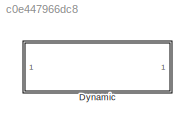
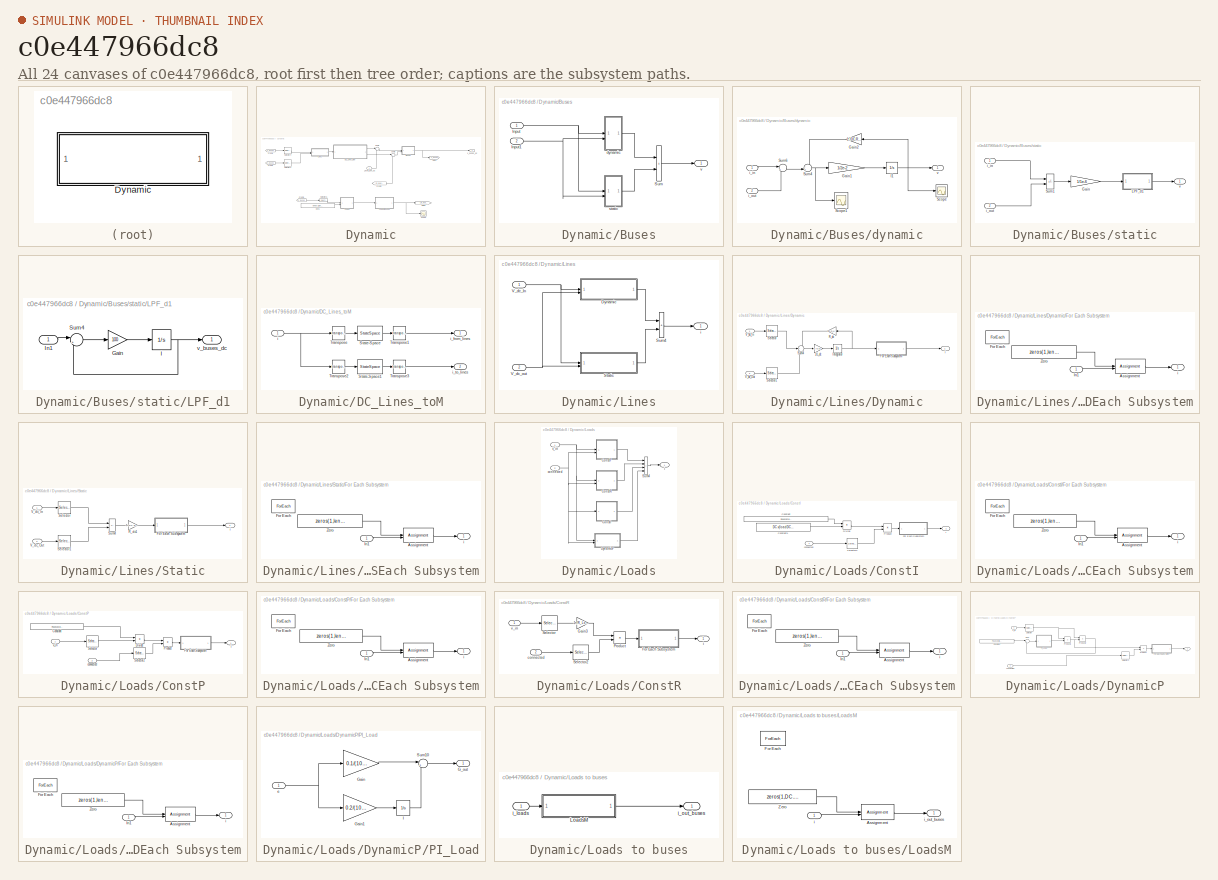
[diagram: thumbnail index - all 24 canvases of the model, root first then tree order]
MODEL slx_c0e447966dc8
KIND model
CONFIG AbsTol = auto
CONFIG EnableMultiTasking = off
CONFIG FixedStep = auto
CONFIG MaxStep = auto
CONFIG MinStep = auto
CONFIG RelTol = 1e-3
CONFIG SampleTimeConstraint = Unconstrained
CONFIG SolverName = VariableStepAuto
CONFIG StartTime = 0.0
CONFIG StopTime = 10.0
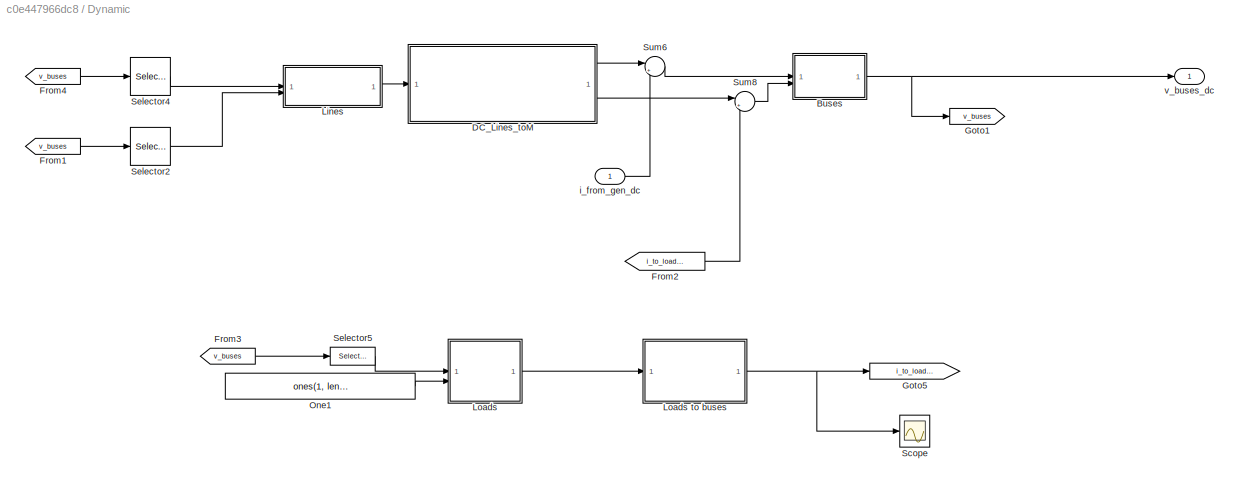
BLOCK [SubSystem] Dynamic
  VariantControl = Dynamic
BLOCK [SubSystem] Dynamic/Buses
BLOCK [Inport] Dynamic/Buses/Input
BLOCK [Inport] Dynamic/Buses/Input1
  Port = 2
BLOCK [Sum] Dynamic/Buses/Sum
  IconShape = rectangular
BLOCK [SubSystem] Dynamic/Buses/dynamic
  Commented = on
BLOCK [Gain] Dynamic/Buses/dynamic/Gain1
  Gain = 1/2e-2
BLOCK [Gain] Dynamic/Buses/dynamic/Gain2
  Gain = 1./DC.Rbus(busDC_complexity == 1)';
  NameLocation = top
BLOCK [Integrator] Dynamic/Buses/dynamic/I1
  InitialCondition = DC.v(busDC_complexity == 1)
BLOCK [Scope] Dynamic/Buses/dynamic/Scope
  ActiveDisplayYMaximum = 1.1
  ActiveDisplayYMinimum = 0.9
  DataLoggingVariableName = ScopeData1
  Floating = off
  GraphicalSettings = {"AxesScalingProperties":{"AlignXAxis":"Center","AlignYAxis":"Center","AutoScaleXAxisLimits":false,"AxesScaling":"Manual","AxesScalingNumUpdates":10,"ExpandOnly":true,"ScaleAxesLimitsAtStop":false,"XAxisDataRange":100,"YAxisDataRange":80},"DisplayProperties":{"ColorOrder":["auto","auto","auto","auto","auto","auto","auto","auto","auto","auto","auto","auto","auto","auto","auto","auto","auto","auto",...<+1971ch>
  LayoutDimensionsString = [1 1]
  MultipleDisplayCache = [{"MaxYLimMag":1.1,"MaxYLimReal":1.1,"MinYLimMag":0.9,"MinYLimReal":0.9,"PlotAsMagnitudePhase":false,"ShowGrid":true,"ShowLegend":false,"Title":"%<SignalLabel>","YLabel":""}]
  NumInputPorts = 1
  ScopeFrameLocation = window
  WasSavedAsWebScope = on
  WindowPosition = [1269.000000,437.000000,560.000000,411.000000,]
BLOCK [Scope] Dynamic/Buses/dynamic/Scope1
  ActiveDisplayYMaximum = 0.27003394850354928
  ActiveDisplayYMinimum = -0.35489510103335586
  ContainerLayout = {"WindowBounds":[482,126,1067,750]}
  DataLoggingVariableName = ScopeData5
  Floating = off
  GraphicalSettings = {"Style":{"BackgroundColor":[0.12941176470588237,0.12941176470588237,0.12941176470588237],"AxesColor":[0.06666666666666667,0.06666666666666667,0.06666666666666667],"LabelsColor":[0.8509803921568627,0.8509803921568627,0.8509803921568627],"PreserveColors":false,"Visible":[true,true,true,true],"LineStyle":["-","-","-","-"],"LineWidth":[1.5,1.5,1.5,1.5],"BarWidth":[0.9,0.9,0.9,0.9],"LineColor":["auto"...<+2342ch>
  MultipleDisplayCache = [{"MaxYLimMag":0.35489510103335586,"MaxYLimReal":0.27003394850354928,"MinYLimMag":0,"MinYLimReal":-0.35489510103335586,"PlotAsMagnitudePhase":false,"ShowGrid":true,"ShowLegend":false,"Title":"%<SignalLabel>","YLabel":""}]
  NumInputPorts = 2
  ScopeFrameLocation = container
  WasSavedAsWebScope = on
  WindowPosition = [482.000000,204.000000,1067.000000,750.000000,]
BLOCK [Sum] Dynamic/Buses/dynamic/Sum4
  Inputs = -+|
BLOCK [Sum] Dynamic/Buses/dynamic/Sum6
  Inputs = |+-
BLOCK [Inport] Dynamic/Buses/dynamic/i_in
BLOCK [Inport] Dynamic/Buses/dynamic/i_out
  Port = 2
BLOCK [Outport] Dynamic/Buses/dynamic/v
BLOCK [SubSystem] Dynamic/Buses/static
  Commented = on
BLOCK [Gain] Dynamic/Buses/static/Gain
  Gain = 1/1e-6
BLOCK [SubSystem] Dynamic/Buses/static/LPF_d1
BLOCK [Gain] Dynamic/Buses/static/LPF_d1/Gain
  Gain = 100
BLOCK [Integrator] Dynamic/Buses/static/LPF_d1/I
  InitialCondition = DC.v(busDC_complexity == 2)
BLOCK [Inport] Dynamic/Buses/static/LPF_d1/In1
BLOCK [Sum] Dynamic/Buses/static/LPF_d1/Sum4
  Inputs = |+-
BLOCK [Outport] Dynamic/Buses/static/LPF_d1/v_buses_dc
BLOCK [Sum] Dynamic/Buses/static/Sum1
  IconShape = rectangular
  Inputs = +-
BLOCK [Inport] Dynamic/Buses/static/i_in
BLOCK [Inport] Dynamic/Buses/static/i_out
  Port = 2
BLOCK [Outport] Dynamic/Buses/static/v
BLOCK [Outport] Dynamic/Buses/v
BLOCK [SubSystem] Dynamic/DC_Lines_toM
  TreatAsAtomicUnit = on
BLOCK [StateSpace] Dynamic/DC_Lines_toM/State-Space
  A = []
  B = []
  C = []
  D = DC.Lines_toM
  InitialCondition = 0
  ParameterTunability = Optimized
BLOCK [StateSpace] Dynamic/DC_Lines_toM/State-Space1
  A = []
  B = []
  C = []
  D = DC.Lines_fromM
  InitialCondition = 0
  ParameterTunability = Optimized
BLOCK [Math] Dynamic/DC_Lines_toM/Transpose
  Operator = transpose
BLOCK [Math] Dynamic/DC_Lines_toM/Transpose1
  Operator = transpose
BLOCK [Math] Dynamic/DC_Lines_toM/Transpose2
  Operator = transpose
BLOCK [Math] Dynamic/DC_Lines_toM/Transpose3
  Operator = transpose
BLOCK [Inport] Dynamic/DC_Lines_toM/i
BLOCK [Outport] Dynamic/DC_Lines_toM/i_from_lines
BLOCK [Outport] Dynamic/DC_Lines_toM/i_to_lines
  Port = 2
BLOCK [From] Dynamic/From1
  GotoTag = v_buses
BLOCK [From] Dynamic/From2
  GotoTag = i_to_loadsDC
BLOCK [From] Dynamic/From3
  GotoTag = v_buses
BLOCK [From] Dynamic/From4
  GotoTag = v_buses
BLOCK [Goto] Dynamic/Goto1
  GotoTag = v_buses
BLOCK [Goto] Dynamic/Goto5
  GotoTag = i_to_loadsDC
BLOCK [SubSystem] Dynamic/Lines
BLOCK [SubSystem] Dynamic/Lines/Dynamic
  Commented = on
BLOCK [Gain] Dynamic/Lines/Dynamic/1//L_dc
  Gain = 1./0.01
BLOCK [SubSystem] Dynamic/Lines/Dynamic/For Each Subsystem
  TreatAsAtomicUnit = on
BLOCK [Assignment] Dynamic/Lines/Dynamic/For Each Subsystem/Assignment
  DiagnosticForDimensions = Warning
  IndexOptions = Index vector (dialog)
  Indices = find(lineDC_complexity == 1)
  OutputSizes = 1
BLOCK [ForEach] Dynamic/Lines/Dynamic/For Each Subsystem/For Each
  DisableCoverage = on
BLOCK [Inport] Dynamic/Lines/Dynamic/For Each Subsystem/In1
  Partition = on
  PartitionDimension = 1
  PartitionOffset = 0
  PartitionWidth = 1
BLOCK [Constant] Dynamic/Lines/Dynamic/For Each Subsystem/Zero
  OutDataTypeStr = Inherit: Inherit via back propagation
  Value = zeros(1,length(DC.from))
  VectorParams1D = off
BLOCK [Outport] Dynamic/Lines/Dynamic/For Each Subsystem/i
  ConcatenationDimension = 1
BLOCK [Integrator] Dynamic/Lines/Dynamic/Integrator
  InitialCondition = DC.i_branch(lineDC_complexity == 1)
BLOCK [Gain] Dynamic/Lines/Dynamic/R_dc
  Gain = DC.R_Lines(lineDC_complexity == 1)
  NameLocation = top
BLOCK [Selector] Dynamic/Lines/Dynamic/Selector
  IndexOptions = Index vector (dialog),Index vector (dialog)
  Indices = 1,find(lineDC_complexity == 1)
  InputPortWidth = 3
  NumberOfDimensions = 2
  OutputSizes = 1,1
BLOCK [Selector] Dynamic/Lines/Dynamic/Selector1
  IndexOptions = Index vector (dialog),Index vector (dialog)
  Indices = 1,find(lineDC_complexity == 1)
  InputPortWidth = 3
  NumberOfDimensions = 2
  OutputSizes = 1,1
BLOCK [Sum] Dynamic/Lines/Dynamic/Sum4
  Inputs = -+-
BLOCK [Inport] Dynamic/Lines/Dynamic/V_dc_In
BLOCK [Inport] Dynamic/Lines/Dynamic/V_dc_Out
  Port = 2
BLOCK [Outport] Dynamic/Lines/Dynamic/i
BLOCK [SubSystem] Dynamic/Lines/Static
  Commented = on
BLOCK [SubSystem] Dynamic/Lines/Static/For Each Subsystem
  TreatAsAtomicUnit = on
BLOCK [Assignment] Dynamic/Lines/Static/For Each Subsystem/Assignment
  DiagnosticForDimensions = Warning
  IndexOptions = Index vector (dialog)
  Indices = find(lineDC_complexity == 2)
  OutputSizes = 1
BLOCK [ForEach] Dynamic/Lines/Static/For Each Subsystem/For Each
  DisableCoverage = on
BLOCK [Inport] Dynamic/Lines/Static/For Each Subsystem/In1
  Partition = on
  PartitionDimension = 1
  PartitionOffset = 0
  PartitionWidth = 1
BLOCK [Constant] Dynamic/Lines/Static/For Each Subsystem/Zero
  OutDataTypeStr = Inherit: Inherit via back propagation
  Value = zeros(1,length(DC.from))
  VectorParams1D = off
BLOCK [Outport] Dynamic/Lines/Static/For Each Subsystem/i
  ConcatenationDimension = 1
BLOCK [Gain] Dynamic/Lines/Static/R_dc1
  Gain = 1./DC.R_Lines(lineDC_complexity == 2)
BLOCK [Selector] Dynamic/Lines/Static/Selector
  IndexOptions = Index vector (dialog),Index vector (dialog)
  Indices = 1,find(lineDC_complexity == 2)
  InputPortWidth = 3
  NumberOfDimensions = 2
  OutputSizes = 1,1
BLOCK [Selector] Dynamic/Lines/Static/Selector1
  IndexOptions = Index vector (dialog),Index vector (dialog)
  Indices = 1,find(lineDC_complexity == 2)
  InputPortWidth = 3
  NumberOfDimensions = 2
  OutputSizes = 1,1
BLOCK [Sum] Dynamic/Lines/Static/Sum4
  IconShape = rectangular
  Inputs = +-
BLOCK [Inport] Dynamic/Lines/Static/V_dc_In
BLOCK [Inport] Dynamic/Lines/Static/V_dc_Out
  Port = 2
BLOCK [Outport] Dynamic/Lines/Static/i
BLOCK [Sum] Dynamic/Lines/Sum4
  IconShape = rectangular
BLOCK [Inport] Dynamic/Lines/V_dc_In
BLOCK [Inport] Dynamic/Lines/V_dc_out
  Port = 2
BLOCK [Outport] Dynamic/Lines/i
BLOCK [SubSystem] Dynamic/Loads
  Commented = on
BLOCK [SubSystem] Dynamic/Loads to buses
  Commented = on
BLOCK [SubSystem] Dynamic/Loads to buses/LoadsM
  TreatAsAtomicUnit = on
BLOCK [Assignment] Dynamic/Loads to buses/LoadsM/Assignment
  DiagnosticForDimensions = Warning
  IndexOptions = Index vector (dialog)
  Indices = Load_busesDC
  OutputSizes = 1
BLOCK [ForEach] Dynamic/Loads to buses/LoadsM/For Each
  DisableCoverage = on
BLOCK [Constant] Dynamic/Loads to buses/LoadsM/Zero
  OutDataTypeStr = Inherit: Inherit via back propagation
  Value = zeros(1,DC.Nbuses)
  VectorParams1D = off
BLOCK [Inport] Dynamic/Loads to buses/LoadsM/i
  Partition = on
  PartitionDimension = 1
  PartitionOffset = 0
  PartitionWidth = 1
BLOCK [Outport] Dynamic/Loads to buses/LoadsM/i_out_buses
  ConcatenationDimension = 1
BLOCK [Inport] Dynamic/Loads to buses/i_loads
BLOCK [Outport] Dynamic/Loads to buses/i_out_buses
BLOCK [SubSystem] Dynamic/Loads/ConstI
  Commented = on
BLOCK [Constant] Dynamic/Loads/ConstI/Constant
  Value = PloadsDC(loadDC_complexity == 3)/(Sb)
BLOCK [Constant] Dynamic/Loads/ConstI/Constant1
  Value = DC.v(loadDC_complexity == 3)
BLOCK [Product] Dynamic/Loads/ConstI/Divide
  Inputs = */
BLOCK [SubSystem] Dynamic/Loads/ConstI/For Each Subsystem
  TreatAsAtomicUnit = on
BLOCK [Assignment] Dynamic/Loads/ConstI/For Each Subsystem/Assignment
  DiagnosticForDimensions = Warning
  IndexOptions = Index vector (dialog)
  Indices = find(loadDC_complexity == 3)
  OutputSizes = 1
BLOCK [ForEach] Dynamic/Loads/ConstI/For Each Subsystem/For Each
  DisableCoverage = on
BLOCK [Inport] Dynamic/Loads/ConstI/For Each Subsystem/In1
  Partition = on
  PartitionDimension = 1
  PartitionOffset = 0
  PartitionWidth = 1
BLOCK [Constant] Dynamic/Loads/ConstI/For Each Subsystem/Zero
  OutDataTypeStr = Inherit: Inherit via back propagation
  Value = zeros(1,length(R_Loads_DC))
  VectorParams1D = off
BLOCK [Outport] Dynamic/Loads/ConstI/For Each Subsystem/i
  ConcatenationDimension = 1
BLOCK [Product] Dynamic/Loads/ConstI/Product
BLOCK [Selector] Dynamic/Loads/ConstI/Selector2
  IndexOptions = Index vector (dialog)
  Indices = find(loadDC_complexity == 3)
  InputPortWidth = length(R_Loads_DC)
  OutputSizes = 1
BLOCK [Inport] Dynamic/Loads/ConstI/connected
BLOCK [Outport] Dynamic/Loads/ConstI/i
BLOCK [SubSystem] Dynamic/Loads/ConstP
  Commented = on
BLOCK [Constant] Dynamic/Loads/ConstP/Constant
  Value = PloadsDC(loadDC_complexity == 2)/Sb
  VectorParams1D = off
BLOCK [Product] Dynamic/Loads/ConstP/Divide
  Inputs = */
BLOCK [SubSystem] Dynamic/Loads/ConstP/For Each Subsystem
  TreatAsAtomicUnit = on
BLOCK [Assignment] Dynamic/Loads/ConstP/For Each Subsystem/Assignment
  DiagnosticForDimensions = Warning
  IndexOptions = Index vector (dialog)
  Indices = find(loadDC_complexity == 2)
  OutputSizes = 1
BLOCK [ForEach] Dynamic/Loads/ConstP/For Each Subsystem/For Each
  DisableCoverage = on
BLOCK [Inport] Dynamic/Loads/ConstP/For Each Subsystem/In1
  Partition = on
  PartitionDimension = 1
  PartitionOffset = 0
  PartitionWidth = 1
BLOCK [Constant] Dynamic/Loads/ConstP/For Each Subsystem/Zero
  OutDataTypeStr = Inherit: Inherit via back propagation
  Value = zeros(1,length(R_Loads_DC))
  VectorParams1D = off
BLOCK [Outport] Dynamic/Loads/ConstP/For Each Subsystem/i
  ConcatenationDimension = 1
BLOCK [Product] Dynamic/Loads/ConstP/Product
BLOCK [Selector] Dynamic/Loads/ConstP/Selector
  IndexOptions = Index vector (dialog),Index vector (dialog)
  Indices = 1,find(loadDC_complexity == 2)
  InputPortWidth = 3
  NumberOfDimensions = 2
  OutputSizes = 1,1
BLOCK [Selector] Dynamic/Loads/ConstP/Selector2
  IndexOptions = Index vector (dialog)
  Indices = find(loadDC_complexity == 2)
  InputPortWidth = length(R_Loads_DC)
  OutputSizes = 1
BLOCK [Inport] Dynamic/Loads/ConstP/connected
  Port = 2
BLOCK [Outport] Dynamic/Loads/ConstP/i
BLOCK [Inport] Dynamic/Loads/ConstP/v_in
BLOCK [SubSystem] Dynamic/Loads/ConstR
  Commented = on
BLOCK [SubSystem] Dynamic/Loads/ConstR/For Each Subsystem
  TreatAsAtomicUnit = on
BLOCK [Assignment] Dynamic/Loads/ConstR/For Each Subsystem/Assignment
  DiagnosticForDimensions = Warning
  IndexOptions = Index vector (dialog)
  Indices = find(loadDC_complexity == 1)
  OutputSizes = 1
BLOCK [ForEach] Dynamic/Loads/ConstR/For Each Subsystem/For Each
  DisableCoverage = on
BLOCK [Inport] Dynamic/Loads/ConstR/For Each Subsystem/In1
  Partition = on
  PartitionDimension = 1
  PartitionOffset = 0
  PartitionWidth = 1
BLOCK [Constant] Dynamic/Loads/ConstR/For Each Subsystem/Zero
  OutDataTypeStr = Inherit: Inherit via back propagation
  Value = zeros(1,length(R_Loads_DC))
  VectorParams1D = off
BLOCK [Outport] Dynamic/Loads/ConstR/For Each Subsystem/i
  ConcatenationDimension = 1
BLOCK [Gain] Dynamic/Loads/ConstR/Gain3
  Gain = 1./R_Loads_DC(loadDC_complexity == 1)
BLOCK [Product] Dynamic/Loads/ConstR/Product
BLOCK [Selector] Dynamic/Loads/ConstR/Selector
  IndexOptions = Index vector (dialog),Index vector (dialog)
  Indices = 1,find(loadDC_complexity == 1)
  InputPortWidth = 3
  NumberOfDimensions = 2
  OutputSizes = 1,1
BLOCK [Selector] Dynamic/Loads/ConstR/Selector2
  IndexOptions = Index vector (dialog)
  Indices = find(loadDC_complexity == 1)
  InputPortWidth = length(R_Loads_DC)
  OutputSizes = 1
BLOCK [Inport] Dynamic/Loads/ConstR/connected
  Port = 2
BLOCK [Outport] Dynamic/Loads/ConstR/i
BLOCK [Inport] Dynamic/Loads/ConstR/v_in
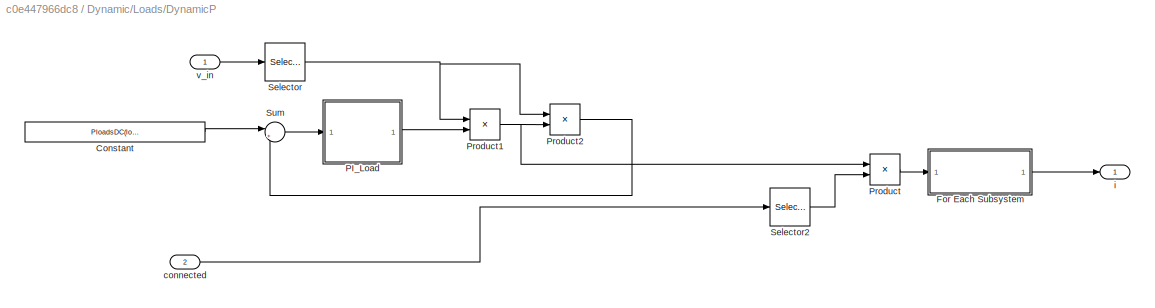
BLOCK [SubSystem] Dynamic/Loads/DynamicP
  Commented = on
BLOCK [Constant] Dynamic/Loads/DynamicP/Constant
  Value = PloadsDC(loadDC_complexity == 4)/Sb
BLOCK [SubSystem] Dynamic/Loads/DynamicP/For Each Subsystem
  TreatAsAtomicUnit = on
BLOCK [Assignment] Dynamic/Loads/DynamicP/For Each Subsystem/Assignment
  DiagnosticForDimensions = Warning
  IndexOptions = Index vector (dialog)
  Indices = find(loadDC_complexity == 4)
  OutputSizes = 1
BLOCK [ForEach] Dynamic/Loads/DynamicP/For Each Subsystem/For Each
  DisableCoverage = on
BLOCK [Inport] Dynamic/Loads/DynamicP/For Each Subsystem/In1
  Partition = on
  PartitionDimension = 1
  PartitionOffset = 0
  PartitionWidth = 1
BLOCK [Constant] Dynamic/Loads/DynamicP/For Each Subsystem/Zero
  OutDataTypeStr = Inherit: Inherit via back propagation
  Value = zeros(1,length(R_Loads_DC))
  VectorParams1D = off
BLOCK [Outport] Dynamic/Loads/DynamicP/For Each Subsystem/i
  ConcatenationDimension = 1
BLOCK [SubSystem] Dynamic/Loads/DynamicP/PI_Load
BLOCK [Outport] Dynamic/Loads/DynamicP/PI_Load/G_out
BLOCK [Gain] Dynamic/Loads/DynamicP/PI_Load/Gain
  Gain = 0.1/(100*pi)
BLOCK [Gain] Dynamic/Loads/DynamicP/PI_Load/Gain1
  Gain = 0.2/(100*pi)
BLOCK [Integrator] Dynamic/Loads/DynamicP/PI_Load/I
  InitialCondition = 1./R_Loads_DC(loadDC_complexity == 4)
BLOCK [Sum] Dynamic/Loads/DynamicP/PI_Load/Sum10
  Inputs = |++
BLOCK [Inport] Dynamic/Loads/DynamicP/PI_Load/e
BLOCK [Product] Dynamic/Loads/DynamicP/Product
BLOCK [Product] Dynamic/Loads/DynamicP/Product1
BLOCK [Product] Dynamic/Loads/DynamicP/Product2
BLOCK [Selector] Dynamic/Loads/DynamicP/Selector
  IndexOptions = Index vector (dialog),Index vector (dialog)
  Indices = 1,find(loadDC_complexity == 4)
  InputPortWidth = 3
  NumberOfDimensions = 2
  OutputSizes = 1,1
BLOCK [Selector] Dynamic/Loads/DynamicP/Selector2
  IndexOptions = Index vector (dialog)
  Indices = find(loadDC_complexity == 4)
  InputPortWidth = length(R_Loads_DC)
  OutputSizes = 1
BLOCK [Sum] Dynamic/Loads/DynamicP/Sum
  Inputs = |+-
BLOCK [Inport] Dynamic/Loads/DynamicP/connected
  Port = 2
BLOCK [Outport] Dynamic/Loads/DynamicP/i
BLOCK [Inport] Dynamic/Loads/DynamicP/v_in
BLOCK [Sum] Dynamic/Loads/Sum4
  IconShape = rectangular
  Inputs = ++++
BLOCK [Inport] Dynamic/Loads/connected
  Port = 2
BLOCK [Outport] Dynamic/Loads/i
BLOCK [Inport] Dynamic/Loads/v_in
BLOCK [Constant] Dynamic/One1
  Commented = on
  OutDataTypeStr = Inherit: Inherit via back propagation
  Value = ones(1, length(R_Loads_DC))
  VectorParams1D = off
BLOCK [Scope] Dynamic/Scope
  ActiveDisplayYMaximum = 0.11218
  ActiveDisplayYMinimum = -0.01246
  DataLoggingVariableName = ScopeData1
  Floating = off
  GraphicalSettings = {"GraphicalSettings":{"LegacySettings":true,"Style":{"AxesScalingProperties":{"AlignXAxis":"Center","AlignYAxis":"Center","AutoScaleXAxisLimits":true,"AxesScaling":"Manual","AxesScalingNumUpdates":10,"ScaleAxesLimitsAtStop":true,"XAxisDataRange":100,"YAxisDataRange":80},"Style":{"AxesColor":"[0 0 0]","ChannelNames":[""],"ColorOrder":"[1 0.909803921568627 0.392156862745098;0.149019607843137 0.54901...<+675ch>
  LayoutDimensionsString = [1 1]
  MultipleDisplayCache = [{"MaxYLimMag":0.11218,"MaxYLimReal":0.11218,"MinYLimMag":0,"MinYLimReal":-0.01246,"PlotAsMagnitudePhase":false,"ShowGrid":true,"ShowLegend":false,"Title":"%<SignalLabel>","YLabel":""}]
  NumInputPorts = 1
  WasSavedAsWebScope = on
  WindowPosition = [237 77 1539 792]
BLOCK [Selector] Dynamic/Selector2
  IndexOptions = Select all,Index vector (dialog)
  Indices = From_nodes,DC.to
  InputPortWidth = Nnodes
  NumberOfDimensions = 2
  OutputSizes = 1,1
BLOCK [Selector] Dynamic/Selector4
  IndexOptions = Select all,Index vector (dialog)
  Indices = From_nodes,DC.from
  InputPortWidth = Nnodes
  NumberOfDimensions = 2
  OutputSizes = 1,1
BLOCK [Selector] Dynamic/Selector5
  Commented = on
  IndexOptions = Select all,Index vector (dialog)
  Indices = 1,Load_busesDC
  InputPortWidth = Nnodes
  NumberOfDimensions = 2
  OutputSizes = 1,1
BLOCK [Sum] Dynamic/Sum6
  Inputs = |++
BLOCK [Sum] Dynamic/Sum8
  Inputs = |++
BLOCK [Inport] Dynamic/i_from_gen_dc
BLOCK [Outport] Dynamic/v_buses_dc
NET Dynamic/Buses/Input1:1 -> Dynamic/Buses/dynamic:2, Dynamic/Buses/static:2
NET Dynamic/Buses/Input:1 -> Dynamic/Buses/dynamic:1, Dynamic/Buses/static:1
LINE Dynamic/Buses/Sum:1 -> Dynamic/Buses/v:1
LINE Dynamic/Buses/dynamic/Gain1:1 -> Dynamic/Buses/dynamic/I1:1
LINE Dynamic/Buses/dynamic/Gain2:1 -> Dynamic/Buses/dynamic/Sum4:1
NET Dynamic/Buses/dynamic/I1:1 -> Dynamic/Buses/dynamic/Gain2:1, Dynamic/Buses/dynamic/Scope:1, Dynamic/Buses/dynamic/v:1
NET Dynamic/Buses/dynamic/Sum4:1 -> Dynamic/Buses/dynamic/Gain1:1, Dynamic/Buses/dynamic/Scope1:1
LINE Dynamic/Buses/dynamic/Sum6:1 -> Dynamic/Buses/dynamic/Sum4:2
LINE Dynamic/Buses/dynamic/i_in:1 -> Dynamic/Buses/dynamic/Sum6:1
LINE Dynamic/Buses/dynamic/i_out:1 -> Dynamic/Buses/dynamic/Sum6:2
LINE Dynamic/Buses/dynamic:1 -> Dynamic/Buses/Sum:1
LINE Dynamic/Buses/static/Gain:1 -> Dynamic/Buses/static/LPF_d1:1
LINE Dynamic/Buses/static/LPF_d1/Gain:1 -> Dynamic/Buses/static/LPF_d1/I:1
NET Dynamic/Buses/static/LPF_d1/I:1 -> Dynamic/Buses/static/LPF_d1/Sum4:2, Dynamic/Buses/static/LPF_d1/v_buses_dc:1
LINE Dynamic/Buses/static/LPF_d1/In1:1 -> Dynamic/Buses/static/LPF_d1/Sum4:1
LINE Dynamic/Buses/static/LPF_d1/Sum4:1 -> Dynamic/Buses/static/LPF_d1/Gain:1
LINE Dynamic/Buses/static/LPF_d1:1 -> Dynamic/Buses/static/v:1
LINE Dynamic/Buses/static/Sum1:1 -> Dynamic/Buses/static/Gain:1
LINE Dynamic/Buses/static/i_in:1 -> Dynamic/Buses/static/Sum1:1
LINE Dynamic/Buses/static/i_out:1 -> Dynamic/Buses/static/Sum1:2
LINE Dynamic/Buses/static:1 -> Dynamic/Buses/Sum:2
NET Dynamic/Buses:1 -> Dynamic/Goto1:1, Dynamic/v_buses_dc:1
LINE Dynamic/DC_Lines_toM/State-Space1:1 -> Dynamic/DC_Lines_toM/Transpose3:1
LINE Dynamic/DC_Lines_toM/State-Space:1 -> Dynamic/DC_Lines_toM/Transpose1:1
LINE Dynamic/DC_Lines_toM/Transpose1:1 -> Dynamic/DC_Lines_toM/i_from_lines:1
LINE Dynamic/DC_Lines_toM/Transpose2:1 -> Dynamic/DC_Lines_toM/State-Space1:1
LINE Dynamic/DC_Lines_toM/Transpose3:1 -> Dynamic/DC_Lines_toM/i_to_lines:1
LINE Dynamic/DC_Lines_toM/Transpose:1 -> Dynamic/DC_Lines_toM/State-Space:1
NET Dynamic/DC_Lines_toM/i:1 -> Dynamic/DC_Lines_toM/Transpose2:1, Dynamic/DC_Lines_toM/Transpose:1
LINE Dynamic/DC_Lines_toM:1 -> Dynamic/Sum6:1
LINE Dynamic/DC_Lines_toM:2 -> Dynamic/Sum8:1
LINE Dynamic/From1:1 -> Dynamic/Selector2:1
LINE Dynamic/From2:1 -> Dynamic/Sum8:2
LINE Dynamic/From3:1 -> Dynamic/Selector5:1
LINE Dynamic/From4:1 -> Dynamic/Selector4:1
LINE Dynamic/Lines/Dynamic/1//L_dc:1 -> Dynamic/Lines/Dynamic/Integrator:1
LINE Dynamic/Lines/Dynamic/For Each Subsystem/Assignment:1 -> Dynamic/Lines/Dynamic/For Each Subsystem/i:1
LINE Dynamic/Lines/Dynamic/For Each Subsystem/In1:1 -> Dynamic/Lines/Dynamic/For Each Subsystem/Assignment:2
LINE Dynamic/Lines/Dynamic/For Each Subsystem/Zero:1 -> Dynamic/Lines/Dynamic/For Each Subsystem/Assignment:1
LINE Dynamic/Lines/Dynamic/For Each Subsystem:1 -> Dynamic/Lines/Dynamic/i:1
NET Dynamic/Lines/Dynamic/Integrator:1 -> Dynamic/Lines/Dynamic/For Each Subsystem:1, Dynamic/Lines/Dynamic/R_dc:1
LINE Dynamic/Lines/Dynamic/R_dc:1 -> Dynamic/Lines/Dynamic/Sum4:1
LINE Dynamic/Lines/Dynamic/Selector1:1 -> Dynamic/Lines/Dynamic/Sum4:3
LINE Dynamic/Lines/Dynamic/Selector:1 -> Dynamic/Lines/Dynamic/Sum4:2
LINE Dynamic/Lines/Dynamic/Sum4:1 -> Dynamic/Lines/Dynamic/1//L_dc:1
LINE Dynamic/Lines/Dynamic/V_dc_In:1 -> Dynamic/Lines/Dynamic/Selector:1
LINE Dynamic/Lines/Dynamic/V_dc_Out:1 -> Dynamic/Lines/Dynamic/Selector1:1
LINE Dynamic/Lines/Dynamic:1 -> Dynamic/Lines/Sum4:1
LINE Dynamic/Lines/Static/For Each Subsystem/Assignment:1 -> Dynamic/Lines/Static/For Each Subsystem/i:1
LINE Dynamic/Lines/Static/For Each Subsystem/In1:1 -> Dynamic/Lines/Static/For Each Subsystem/Assignment:2
LINE Dynamic/Lines/Static/For Each Subsystem/Zero:1 -> Dynamic/Lines/Static/For Each Subsystem/Assignment:1
LINE Dynamic/Lines/Static/For Each Subsystem:1 -> Dynamic/Lines/Static/i:1
LINE Dynamic/Lines/Static/R_dc1:1 -> Dynamic/Lines/Static/For Each Subsystem:1
LINE Dynamic/Lines/Static/Selector1:1 -> Dynamic/Lines/Static/Sum4:2
LINE Dynamic/Lines/Static/Selector:1 -> Dynamic/Lines/Static/Sum4:1
LINE Dynamic/Lines/Static/Sum4:1 -> Dynamic/Lines/Static/R_dc1:1
LINE Dynamic/Lines/Static/V_dc_In:1 -> Dynamic/Lines/Static/Selector:1
LINE Dynamic/Lines/Static/V_dc_Out:1 -> Dynamic/Lines/Static/Selector1:1
LINE Dynamic/Lines/Static:1 -> Dynamic/Lines/Sum4:2
LINE Dynamic/Lines/Sum4:1 -> Dynamic/Lines/i:1
NET Dynamic/Lines/V_dc_In:1 -> Dynamic/Lines/Dynamic:1, Dynamic/Lines/Static:1
NET Dynamic/Lines/V_dc_out:1 -> Dynamic/Lines/Dynamic:2, Dynamic/Lines/Static:2
LINE Dynamic/Lines:1 -> Dynamic/DC_Lines_toM:1
LINE Dynamic/Loads to buses/LoadsM/Assignment:1 -> Dynamic/Loads to buses/LoadsM/i_out_buses:1
LINE Dynamic/Loads to buses/LoadsM/Zero:1 -> Dynamic/Loads to buses/LoadsM/Assignment:1
LINE Dynamic/Loads to buses/LoadsM/i:1 -> Dynamic/Loads to buses/LoadsM/Assignment:2
LINE Dynamic/Loads to buses/LoadsM:1 -> Dynamic/Loads to buses/i_out_buses:1
LINE Dynamic/Loads to buses/i_loads:1 -> Dynamic/Loads to buses/LoadsM:1
NET Dynamic/Loads to buses:1 -> Dynamic/Goto5:1, Dynamic/Scope:1
LINE Dynamic/Loads/ConstI/Constant1:1 -> Dynamic/Loads/ConstI/Divide:2
LINE Dynamic/Loads/ConstI/Constant:1 -> Dynamic/Loads/ConstI/Divide:1
LINE Dynamic/Loads/ConstI/Divide:1 -> Dynamic/Loads/ConstI/Product:1
LINE Dynamic/Loads/ConstI/For Each Subsystem/Assignment:1 -> Dynamic/Loads/ConstI/For Each Subsystem/i:1
LINE Dynamic/Loads/ConstI/For Each Subsystem/In1:1 -> Dynamic/Loads/ConstI/For Each Subsystem/Assignment:2
LINE Dynamic/Loads/ConstI/For Each Subsystem/Zero:1 -> Dynamic/Loads/ConstI/For Each Subsystem/Assignment:1
LINE Dynamic/Loads/ConstI/For Each Subsystem:1 -> Dynamic/Loads/ConstI/i:1
LINE Dynamic/Loads/ConstI/Product:1 -> Dynamic/Loads/ConstI/For Each Subsystem:1
LINE Dynamic/Loads/ConstI/Selector2:1 -> Dynamic/Loads/ConstI/Product:2
LINE Dynamic/Loads/ConstI/connected:1 -> Dynamic/Loads/ConstI/Selector2:1
LINE Dynamic/Loads/ConstI:1 -> Dynamic/Loads/Sum4:3
LINE Dynamic/Loads/ConstP/Constant:1 -> Dynamic/Loads/ConstP/Divide:1
LINE Dynamic/Loads/ConstP/Divide:1 -> Dynamic/Loads/ConstP/Product:1
LINE Dynamic/Loads/ConstP/For Each Subsystem/Assignment:1 -> Dynamic/Loads/ConstP/For Each Subsystem/i:1
LINE Dynamic/Loads/ConstP/For Each Subsystem/In1:1 -> Dynamic/Loads/ConstP/For Each Subsystem/Assignment:2
LINE Dynamic/Loads/ConstP/For Each Subsystem/Zero:1 -> Dynamic/Loads/ConstP/For Each Subsystem/Assignment:1
LINE Dynamic/Loads/ConstP/For Each Subsystem:1 -> Dynamic/Loads/ConstP/i:1
LINE Dynamic/Loads/ConstP/Product:1 -> Dynamic/Loads/ConstP/For Each Subsystem:1
LINE Dynamic/Loads/ConstP/Selector2:1 -> Dynamic/Loads/ConstP/Product:2
LINE Dynamic/Loads/ConstP/Selector:1 -> Dynamic/Loads/ConstP/Divide:2
LINE Dynamic/Loads/ConstP/connected:1 -> Dynamic/Loads/ConstP/Selector2:1
LINE Dynamic/Loads/ConstP/v_in:1 -> Dynamic/Loads/ConstP/Selector:1
LINE Dynamic/Loads/ConstP:1 -> Dynamic/Loads/Sum4:1
LINE Dynamic/Loads/ConstR/For Each Subsystem/Assignment:1 -> Dynamic/Loads/ConstR/For Each Subsystem/i:1
LINE Dynamic/Loads/ConstR/For Each Subsystem/In1:1 -> Dynamic/Loads/ConstR/For Each Subsystem/Assignment:2
LINE Dynamic/Loads/ConstR/For Each Subsystem/Zero:1 -> Dynamic/Loads/ConstR/For Each Subsystem/Assignment:1
LINE Dynamic/Loads/ConstR/For Each Subsystem:1 -> Dynamic/Loads/ConstR/i:1
LINE Dynamic/Loads/ConstR/Gain3:1 -> Dynamic/Loads/ConstR/Product:1
LINE Dynamic/Loads/ConstR/Product:1 -> Dynamic/Loads/ConstR/For Each Subsystem:1
LINE Dynamic/Loads/ConstR/Selector2:1 -> Dynamic/Loads/ConstR/Product:2
LINE Dynamic/Loads/ConstR/Selector:1 -> Dynamic/Loads/ConstR/Gain3:1
LINE Dynamic/Loads/ConstR/connected:1 -> Dynamic/Loads/ConstR/Selector2:1
LINE Dynamic/Loads/ConstR/v_in:1 -> Dynamic/Loads/ConstR/Selector:1
LINE Dynamic/Loads/ConstR:1 -> Dynamic/Loads/Sum4:2
LINE Dynamic/Loads/DynamicP/Constant:1 -> Dynamic/Loads/DynamicP/Sum:1
LINE Dynamic/Loads/DynamicP/For Each Subsystem/Assignment:1 -> Dynamic/Loads/DynamicP/For Each Subsystem/i:1
LINE Dynamic/Loads/DynamicP/For Each Subsystem/In1:1 -> Dynamic/Loads/DynamicP/For Each Subsystem/Assignment:2
LINE Dynamic/Loads/DynamicP/For Each Subsystem/Zero:1 -> Dynamic/Loads/DynamicP/For Each Subsystem/Assignment:1
LINE Dynamic/Loads/DynamicP/For Each Subsystem:1 -> Dynamic/Loads/DynamicP/i:1
LINE Dynamic/Loads/DynamicP/PI_Load/Gain1:1 -> Dynamic/Loads/DynamicP/PI_Load/I:1
LINE Dynamic/Loads/DynamicP/PI_Load/Gain:1 -> Dynamic/Loads/DynamicP/PI_Load/Sum10:1
LINE Dynamic/Loads/DynamicP/PI_Load/I:1 -> Dynamic/Loads/DynamicP/PI_Load/Sum10:2
LINE Dynamic/Loads/DynamicP/PI_Load/Sum10:1 -> Dynamic/Loads/DynamicP/PI_Load/G_out:1
NET Dynamic/Loads/DynamicP/PI_Load/e:1 -> Dynamic/Loads/DynamicP/PI_Load/Gain1:1, Dynamic/Loads/DynamicP/PI_Load/Gain:1
LINE Dynamic/Loads/DynamicP/PI_Load:1 -> Dynamic/Loads/DynamicP/Product1:2
NET Dynamic/Loads/DynamicP/Product1:1 -> Dynamic/Loads/DynamicP/Product2:2, Dynamic/Loads/DynamicP/Product:1
LINE Dynamic/Loads/DynamicP/Product2:1 -> Dynamic/Loads/DynamicP/Sum:2
LINE Dynamic/Loads/DynamicP/Product:1 -> Dynamic/Loads/DynamicP/For Each Subsystem:1
LINE Dynamic/Loads/DynamicP/Selector2:1 -> Dynamic/Loads/DynamicP/Product:2
NET Dynamic/Loads/DynamicP/Selector:1 -> Dynamic/Loads/DynamicP/Product1:1, Dynamic/Loads/DynamicP/Product2:1
LINE Dynamic/Loads/DynamicP/Sum:1 -> Dynamic/Loads/DynamicP/PI_Load:1
LINE Dynamic/Loads/DynamicP/connected:1 -> Dynamic/Loads/DynamicP/Selector2:1
LINE Dynamic/Loads/DynamicP/v_in:1 -> Dynamic/Loads/DynamicP/Selector:1
LINE Dynamic/Loads/DynamicP:1 -> Dynamic/Loads/Sum4:4
LINE Dynamic/Loads/Sum4:1 -> Dynamic/Loads/i:1
NET Dynamic/Loads/connected:1 -> Dynamic/Loads/ConstI:1, Dynamic/Loads/ConstP:2, Dynamic/Loads/ConstR:2, Dynamic/Loads/DynamicP:2
NET Dynamic/Loads/v_in:1 -> Dynamic/Loads/ConstP:1, Dynamic/Loads/ConstR:1, Dynamic/Loads/DynamicP:1
LINE Dynamic/Loads:1 -> Dynamic/Loads to buses:1
LINE Dynamic/One1:1 -> Dynamic/Loads:2
LINE Dynamic/Selector2:1 -> Dynamic/Lines:2
LINE Dynamic/Selector4:1 -> Dynamic/Lines:1
LINE Dynamic/Selector5:1 -> Dynamic/Loads:1
LINE Dynamic/Sum6:1 -> Dynamic/Buses:1
LINE Dynamic/Sum8:1 -> Dynamic/Buses:2
LINE Dynamic/i_from_gen_dc:1 -> Dynamic/Sum6:2
note: NET lines group one-source signal fan-out (src -> all destinations, sorted); 1:1 wires keep LINE
